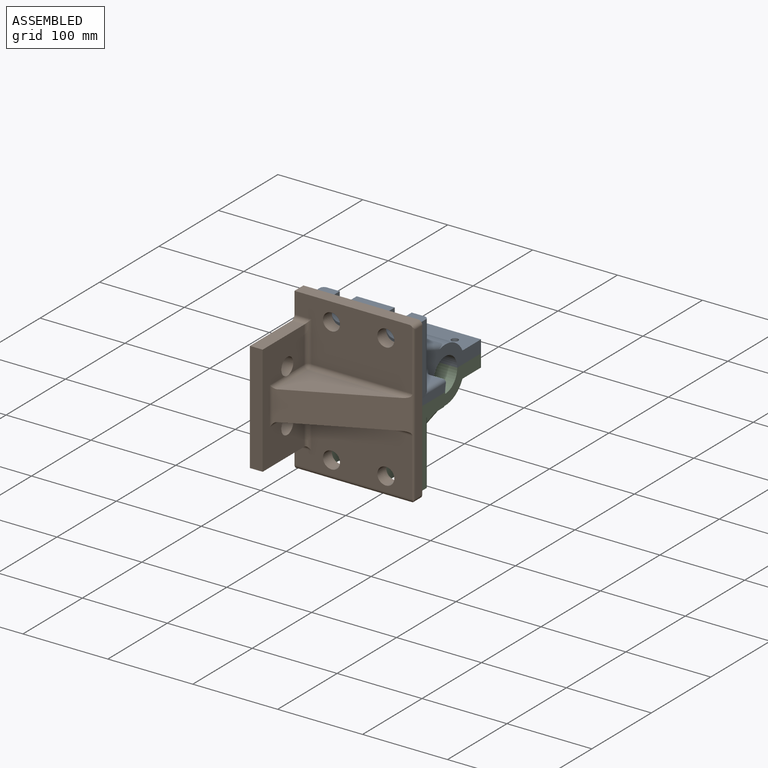
[diagram: assembled view]
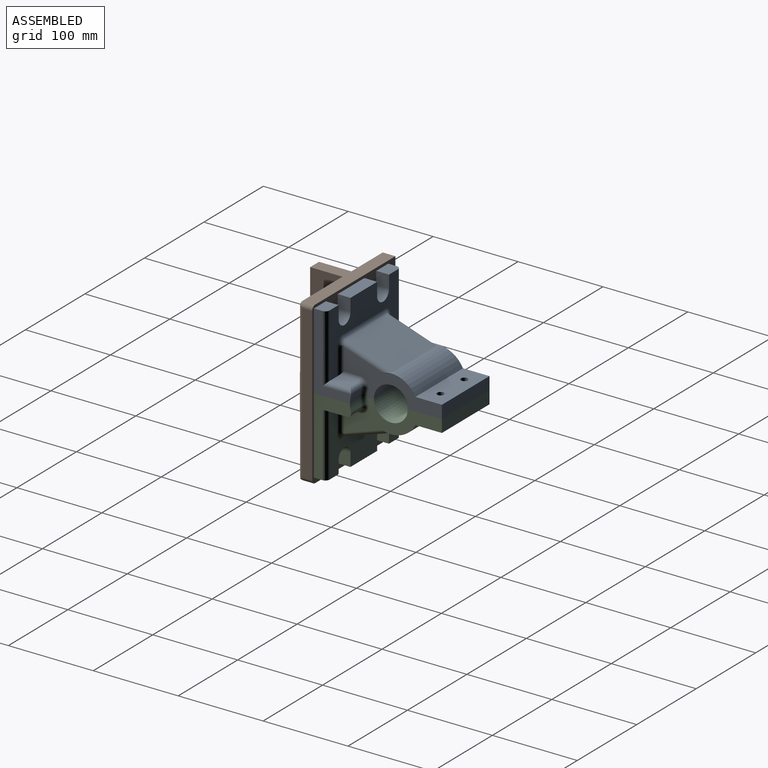
[diagram: assembled view, second angle]
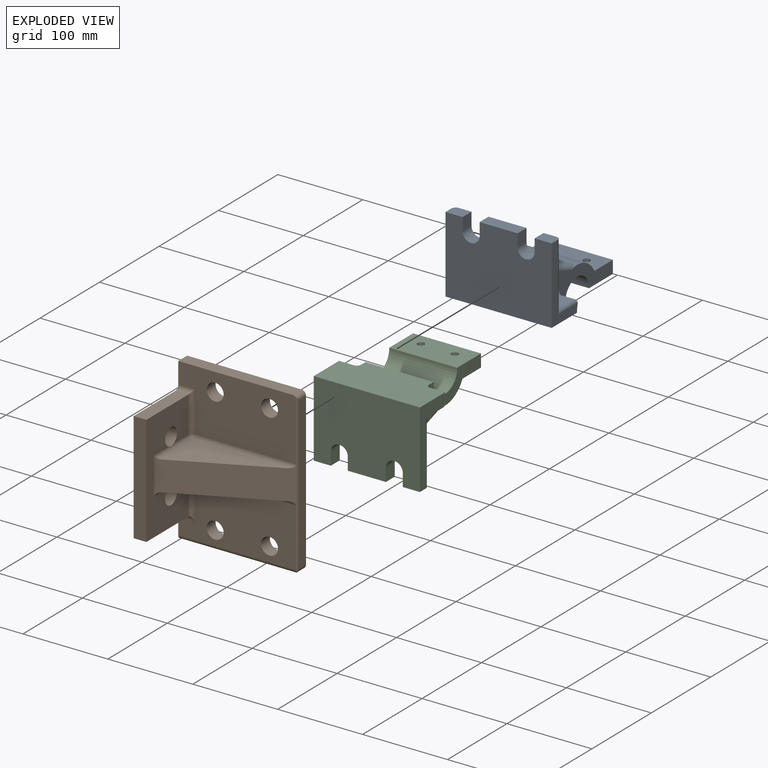
[diagram: exploded view]
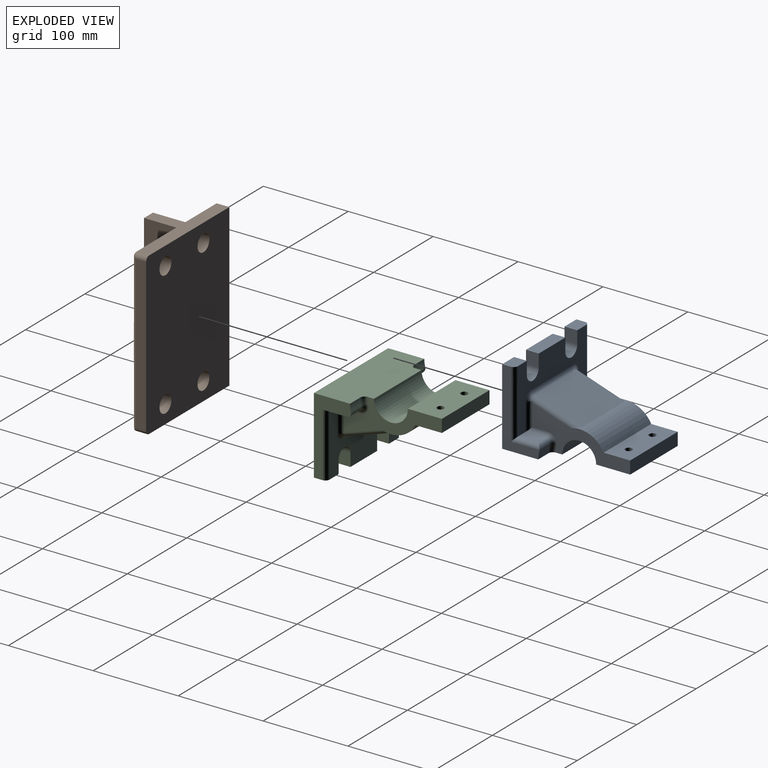
[diagram: exploded view, second angle]
ASSEMBLY  parts=3 mates=3
PART A: 46 faces, bbox 135x125x90 mm
  f0: plane 20.1x15mm, normal (0,0,-1), area 296.1mm2, adj f2,f3,f11,f27,f36
  f1: plane 44.8x15mm, normal (0,0,-1), area 672mm2, adj f2,f3,f22,f26
  f2: plane 115x75mm, normal (1,0,0), area 4056.7mm2, adj f0,f1,f4,f6,f9,f22,f23,f24
  f3: plane 125x90mm, normal (-1,0,0), area 10335.8mm2, adj f0,f1,f8,f9,f10,f11,f22,f23
  f4: plane 23.86x12.5mm, normal (0,0,-1), area 298.2mm2, adj f2,f37,f39,f41
  f5: cylinder r=32.5mm len=17.5mm, axis (0,1,0), area 153.5mm2, adj f8,f11,f38,f39
  f6: plane 28.86x17.5mm, normal (0,0,-1), area 422.9mm2, adj f2,f10,f29,f32,f45
  f7: cylinder r=32.5mm len=17.5mm, axis (0,1,0), area 153.5mm2, adj f8,f10,f29,f30
  f8: plane 125x55mm, normal (0,0,1), area 6323.2mm2, adj f3,f5,f7,f10,f11,f17,f18,f19
  f9: plane 20.1x15mm, normal (0,0,-1), area 296.1mm2, adj f2,f3,f10,f24,f45
  f10: plane 90x43.86mm, normal (0,-1,0), area 1394mm2, adj f3,f6,f7,f8,f9,f29,f45
  f11: plane 90x43.86mm, normal (0,1,0), area 1230.1mm2, adj f0,f3,f5,f8,f36,f37,f39
  f12: plane 70x56.58mm, normal (0.32,0,-0.95), area 4174.9mm2, adj f13,f28,f34,f42
  f13: cylinder r=32.5mm len=80mm, axis (0,1,0), area 2864.3mm2, adj f12,f14,f18,f19,f34,f42
  f14: plane 80x31.17mm, normal (0,0,-1), area 2390.4mm2, adj f13,f15,f18,f19,f20,f21
  f15: plane 80x15mm, normal (1,0,0), area 1200mm2, adj f14,f16,f18,f19
  f16: plane 80x40mm, normal (0,0,1), area 3096.9mm2, adj f15,f17,f18,f19,f20,f21
  f17: cylinder r=20mm len=80mm, axis (0,1,0), area 5026.5mm2, adj f8,f16,f18,f19
  f18: plane 115x45.56mm, normal (0,-1,0), area 2116.6mm2, adj f8,f13,f14,f15,f16,f17,f30,f31
  f19: plane 115x45.56mm, normal (0,1,0), area 2116.6mm2, adj f8,f13,f14,f15,f16,f17,f38,f40
  f20: cylinder r=4.05mm len=15mm, axis (0,0,-1), area 381.7mm2, adj f14,f16
  f21: cylinder r=4.05mm len=15mm, axis (0,0,-1), area 381.7mm2, adj f14,f16
  f22: plane 15x15mm, normal (0,-1,0), area 225mm2, adj f1,f2,f3,f23
  f23: cylinder r=10mm len=20mm, axis (1,0,0), area 471.2mm2, adj f2,f3,f22,f24
  f24: plane 15x15mm, normal (0,1,0), area 225mm2, adj f2,f3,f9,f23
  f25: cylinder r=10mm len=20mm, axis (1,0,0), area 471.2mm2, adj f2,f3,f26,f27
  f26: plane 15x15mm, normal (0,1,0), area 225mm2, adj f1,f2,f3,f25
  f27: plane 15x15mm, normal (0,-1,0), area 225mm2, adj f0,f2,f3,f25
  f28: cylinder r=5mm len=70mm, axis (0,-1,0), area 437.2mm2, adj f2,f12,f35,f44
  f29: cylinder r=5mm len=17.5mm, axis (0,1,0), area 161.1mm2, adj f6,f7,f10,f31
  f30: torus R=27.5mm, axis (0,-1,0), area 65mm2, adj f7,f8,f18,f31
  f31: torus R=10mm, axis (0,-1,0), area 98.6mm2, adj f18,f29,f30,f32
  f32: cylinder r=5mm len=23.86mm, axis (1,0,0), area 173.1mm2, adj f6,f18,f31,f33
  f33: cylinder r=5mm len=30.56mm, axis (0,0,1), area 225.8mm2, adj f2,f18,f32,f35
  f34: cylinder r=5mm len=58.16mm, axis (-0.95,0,-0.32), area 427.7mm2, adj f12,f13,f18,f35
  f35: bspline ~10.54x10mm, area 79.2mm2, adj f2,f28,f33,f34
  f36: cylinder r=5mm len=80mm, axis (0,0,1), area 603.3mm2, adj f0,f2,f11,f37
  f37: cylinder r=5mm len=33.86mm, axis (1,0,0), area 226.6mm2, adj f4,f11,f36,f39
  f38: torus R=27.5mm, axis (0,-1,0), area 65mm2, adj f5,f8,f19,f40
  f39: cylinder r=5mm len=17.5mm, axis (0,1,0), area 146.8mm2, adj f4,f5,f11,f37,f40
  f40: torus R=10mm, axis (0,-1,0), area 98.6mm2, adj f19,f38,f39,f41
  f41: cylinder r=5mm len=23.86mm, axis (-1,0,0), area 173.1mm2, adj f4,f19,f40,f43
  f42: cylinder r=5mm len=58.16mm, axis (0.95,0,0.32), area 427.7mm2, adj f12,f13,f19,f44
  f43: cylinder r=5mm len=30.56mm, axis (0,0,-1), area 225.8mm2, adj f2,f19,f41,f44
  f44: bspline ~10.54x10mm, area 79.2mm2, adj f2,f28,f42,f43
  f45: cylinder r=5mm len=75mm, axis (0,0,-1), area 589mm2, adj f2,f6,f9,f10
PART B: 35 faces, bbox 140x90x190 mm
  f0: plane 190x140mm, normal (0,1,0), area 25332.6mm2, adj f2,f11,f12,f13,f25,f28,f29,f30
  f1: plane 130x70mm, normal (1,0,0), area 5867.2mm2, adj f3,f4,f5,f15,f17,f18,f19,f20
  f2: plane 190x90mm, normal (-1,0,0), area 11977mm2, adj f0,f3,f4,f5,f9,f10,f12,f13
  f3: plane 130x15mm, normal (0,-1,0), area 1950mm2, adj f1,f2,f4,f5
  f4: plane 70x15mm, normal (0,0,1), area 1050mm2, adj f1,f2,f3,f16
  f5: plane 70x15mm, normal (0,0,-1), area 1050mm2, adj f1,f2,f3,f14
  f6: plane 119.35x57.3mm, normal (0.43,-0.9,0), area 4641.6mm2, adj f7,f8,f15,f18,f19,f23,f24,f27
  f7: plane 109.58x52.6mm, normal (0,0,1), area 2882mm2, adj f6,f19,f24
  f8: plane 109.58x52.6mm, normal (0,0,-1), area 2882mm2, adj f6,f18,f23
  f9: plane 138.89x72.5mm, normal (0,-1,0), area 8488.7mm2, adj f2,f12,f16,f20,f24,f25,f27,f29
  f10: plane 138.89x67.5mm, normal (0,-1,0), area 7796.5mm2, adj f2,f14,f17,f23,f26,f27,f30,f31
  f11: plane 180x11.85mm, normal (1,0,0), area 2133.7mm2, adj f0,f25,f27,f28
  f12: plane 135x15mm, normal (0,0,1), area 2025mm2, adj f0,f2,f9,f25
  f13: plane 135x10mm, normal (0,0,-1), area 1350mm2, adj f0,f2,f26,f28
  f14: cylinder r=5mm len=20mm, axis (-1,0,0), area 132.1mm2, adj f2,f5,f10,f17
  f15: cylinder r=5mm len=45mm, axis (0,0,1), area 224.4mm2, adj f1,f6,f18,f19
  f16: cylinder r=5mm len=20mm, axis (1,0,0), area 132.1mm2, adj f2,f4,f9,f20
  f17: cylinder r=5mm len=47.5mm, axis (0,0,-1), area 348.1mm2, adj f1,f10,f14,f21
  f18: cylinder r=5mm len=58.15mm, axis (0,-1,0), area 425.2mm2, adj f1,f6,f8,f15,f21,f34
  f19: cylinder r=5mm len=58.15mm, axis (0,1,0), area 425.2mm2, adj f1,f6,f7,f15,f22,f33
  f20: cylinder r=5mm len=47.5mm, axis (0,0,-1), area 348.1mm2, adj f1,f9,f16,f22
  f21: sphere r=5mm, area 39.3mm2, adj f17,f18,f23
  f22: sphere r=5mm, area 39.3mm2, adj f19,f20,f24
  f23: cylinder r=5mm len=118.89mm, axis (1,0,0), area 910.4mm2, adj f6,f8,f10,f21,f27
  f24: cylinder r=5mm len=118.89mm, axis (-1,0,0), area 910.4mm2, adj f6,f7,f9,f22,f27
  f25: cylinder r=5mm len=15mm, axis (0,-1,0), area 112.7mm2, adj f0,f9,f11,f12,f27
  f26: cylinder r=5mm len=139.34mm, axis (1,0,0), area 1083.4mm2, adj f2,f10,f13,f27,f28
  f27: cylinder r=5mm len=185.63mm, axis (0,0,1), area 711.3mm2, adj f6,f9,f10,f11,f23,f24,f25,f26
  f28: cylinder r=5mm len=14.34mm, axis (0,1,0), area 99.2mm2, adj f0,f11,f13,f26,f27
  f29: cylinder r=10mm len=20mm, axis (0,1,0), area 942.5mm2, adj f0,f9
  f30: cylinder r=10mm len=20mm, axis (0,1,0), area 942.5mm2, adj f0,f10
  f31: cylinder r=10mm len=20mm, axis (0,1,0), area 942.5mm2, adj f0,f10
  f32: cylinder r=10mm len=20mm, axis (0,1,0), area 942.5mm2, adj f0,f9
  f33: cylinder r=10mm len=20mm, axis (-1,0,0), area 943mm2, adj f1,f2,f19
  f34: cylinder r=10mm len=20mm, axis (-1,0,0), area 943mm2, adj f1,f2,f18
PART C: same geometry as A
PLACE A rot(axis=(-0.71,-0.71,0),180deg) t=(-108.43,122.63,27.03)mm
PLACE B rot(axis=(0,-1,-0.02),0deg) t=(-108.07,47.63,25.31)mm
PLACE C rot(axis=(0,0,1),90deg) t=(-108.43,122.63,27.03)mm
MATE planar C.f23 <-> B.f31  axis (0,-1,0) through (-76.03,47.63,-47.97)mm
MATE fastened A.f16 <-> C.f16  axis (0,0,-1) through (-108.43,162.48,27.03)mm
MATE planar A.f25 <-> B.f29  axis (0,-1,0) through (-76.03,47.63,102.03)mm
